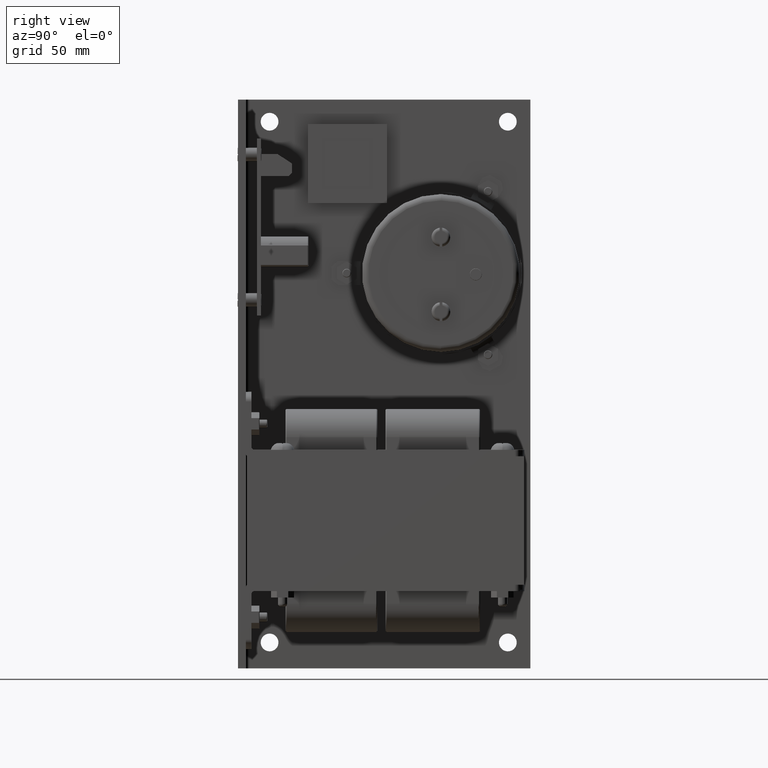
[diagram: clean part render]
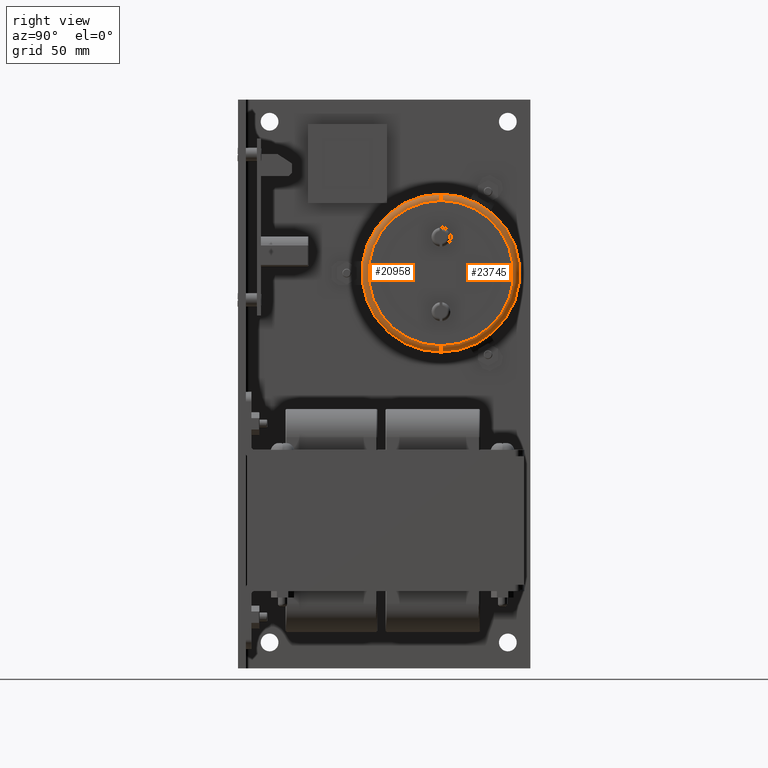
[diagram: same view with one multi-face feature highlighted, each face labeled with its STEP entity id]
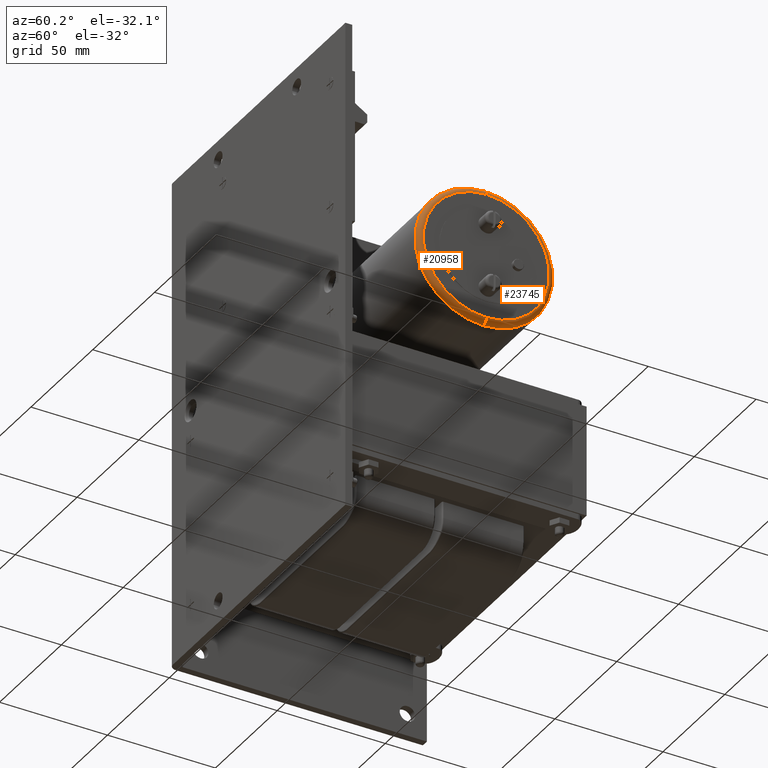
[diagram: same view with one multi-face feature highlighted, each face labeled with its STEP entity id]
A machine part, right view. The highlighted faces form ONE feature: a constant-radius fillet chain: 2 tangent blend faces with common blend radius 2.54 mm. The faces share edges in the B-rep.
A second angle (auxiliary view) of the same feature is appended — it is thin or edge-on in the first view.
Their STEP definitions:
[1] entity #20958 (Torus):
#264 = AXIS2_PLACEMENT_3D ( 'NONE', #6433, #1551, #3801 ) ;
#402 = DIRECTION ( 'NONE',  ( 0.0000000000000000000, 1.000000000000000000, -1.224646799147353200E-016 ) ) ;
#479 = VERTEX_POINT ( 'NONE', #15959 ) ;
#1216 = AXIS2_PLACEMENT_3D ( 'NONE', #21659, #25913, #28318 ) ;
#1551 = DIRECTION ( 'NONE',  ( 1.000000000000000000, 0.0000000000000000000, 0.0000000000000000000 ) ) ;
#2584 = CIRCLE ( 'NONE', #4785, 0.1000000000000000200 ) ;
#3801 = DIRECTION ( 'NONE',  ( 0.0000000000000000000, 0.0000000000000000000, -1.000000000000000000 ) ) ;
#4673 = CARTESIAN_POINT ( 'NONE',  ( 4.402320529999975900, 3.205000002417780300, 1.754671999999999600 ) ) ;
#4785 = AXIS2_PLACEMENT_3D ( 'NONE', #14617, #402, #7422 ) ;
#5256 = TOROIDAL_SURFACE ( 'NONE', #264, 1.150000000000000100, 0.1000000000000000100 ) ;
#5584 = EDGE_CURVE ( 'NONE', #26335, #21542, #6052, .T. ) ;
#6052 = CIRCLE ( 'NONE', #11945, 0.1000000000000000200 ) ;
#6321 = EDGE_CURVE ( 'NONE', #479, #21542, #27749, .T. ) ;
#6433 = CARTESIAN_POINT ( 'NONE',  ( 4.402320529999975900, 3.205000002417780300, 1.754671999999999600 ) ) ;
#6812 = DIRECTION ( 'NONE',  ( -1.000000000000000000, -0.0000000000000000000, -0.0000000000000000000 ) ) ;
#7422 = DIRECTION ( 'NONE',  ( 0.0000000000000000000, 0.0000000000000000000, 1.000000000000000000 ) ) ;
#9285 = ORIENTED_EDGE ( 'NONE', *, *, #6321, .F. ) ;
#9973 = AXIS2_PLACEMENT_3D ( 'NONE', #4673, #6812, #23187 ) ;
#10167 = VERTEX_POINT ( 'NONE', #23758 ) ;
#11377 = CARTESIAN_POINT ( 'NONE',  ( 4.402320529999975900, 3.205000002417780300, 0.5046719999999995700 ) ) ;
#11945 = AXIS2_PLACEMENT_3D ( 'NONE', #14934, #12805, #21968 ) ;
#12643 = ORIENTED_EDGE ( 'NONE', *, *, #16418, .F. ) ;
#12805 = DIRECTION ( 'NONE',  ( 0.0000000000000000000, -1.000000000000000000, 0.0000000000000000000 ) ) ;
#14617 = CARTESIAN_POINT ( 'NONE',  ( 4.402320529999975900, 3.205000002417780300, 2.904671999999999700 ) ) ;
#14746 = EDGE_LOOP ( 'NONE', ( #12643, #24720, #15397, #9285 ) ) ;
#14934 = CARTESIAN_POINT ( 'NONE',  ( 4.402320529999975900, 3.205000002417780300, 0.6046719999999995400 ) ) ;
#15065 = EDGE_CURVE ( 'NONE', #26335, #10167, #28815, .T. ) ;
#15397 = ORIENTED_EDGE ( 'NONE', *, *, #5584, .T. ) ;
#15959 = CARTESIAN_POINT ( 'NONE',  ( 4.502320529999975600, 3.205000002417780300, 2.904671999999999700 ) ) ;
#16418 = EDGE_CURVE ( 'NONE', #10167, #479, #2584, .T. ) ;
#20958 = ADVANCED_FACE ( 'NONE', ( #27265 ), #5256, .T. ) ;
#21542 = VERTEX_POINT ( 'NONE', #25477 ) ;
#21659 = CARTESIAN_POINT ( 'NONE',  ( 4.502320529999975600, 3.205000002417780300, 1.754671999999999600 ) ) ;
#21968 = DIRECTION ( 'NONE',  ( 0.0000000000000000000, 0.0000000000000000000, -1.000000000000000000 ) ) ;
#23187 = DIRECTION ( 'NONE',  ( 0.0000000000000000000, 0.0000000000000000000, -1.000000000000000000 ) ) ;
#23758 = CARTESIAN_POINT ( 'NONE',  ( 4.402320529999975900, 3.205000002417780300, 3.004671999999999800 ) ) ;
#24720 = ORIENTED_EDGE ( 'NONE', *, *, #15065, .F. ) ;
#25477 = CARTESIAN_POINT ( 'NONE',  ( 4.502320529999975600, 3.205000002417780300, 0.6046719999999995400 ) ) ;
#25913 = DIRECTION ( 'NONE',  ( 1.000000000000000000, 0.0000000000000000000, 0.0000000000000000000 ) ) ;
#26335 = VERTEX_POINT ( 'NONE', #11377 ) ;
#27265 = FACE_OUTER_BOUND ( 'NONE', #14746, .T. ) ;
#27749 = CIRCLE ( 'NONE', #1216, 1.150000000000000100 ) ;
#28318 = DIRECTION ( 'NONE',  ( 0.0000000000000000000, 0.0000000000000000000, -1.000000000000000000 ) ) ;
#28815 = CIRCLE ( 'NONE', #9973, 1.250000000000000000 ) ;
[2] entity #23745 (Torus):
#402 = DIRECTION ( 'NONE',  ( 0.0000000000000000000, 1.000000000000000000, -1.224646799147353200E-016 ) ) ;
#479 = VERTEX_POINT ( 'NONE', #15959 ) ;
#1101 = ORIENTED_EDGE ( 'NONE', *, *, #28081, .F. ) ;
#2584 = CIRCLE ( 'NONE', #4785, 0.1000000000000000200 ) ;
#3633 = DIRECTION ( 'NONE',  ( 1.000000000000000000, 0.0000000000000000000, 0.0000000000000000000 ) ) ;
#4450 = DIRECTION ( 'NONE',  ( -1.000000000000000000, -0.0000000000000000000, -0.0000000000000000000 ) ) ;
#4785 = AXIS2_PLACEMENT_3D ( 'NONE', #14617, #402, #7422 ) ;
#5406 = CIRCLE ( 'NONE', #23001, 1.150000000000000100 ) ;
#5584 = EDGE_CURVE ( 'NONE', #26335, #21542, #6052, .T. ) ;
#5820 = ORIENTED_EDGE ( 'NONE', *, *, #8626, .F. ) ;
#5883 = DIRECTION ( 'NONE',  ( 0.0000000000000000000, 0.0000000000000000000, -1.000000000000000000 ) ) ;
#6052 = CIRCLE ( 'NONE', #11945, 0.1000000000000000200 ) ;
#7422 = DIRECTION ( 'NONE',  ( 0.0000000000000000000, 0.0000000000000000000, 1.000000000000000000 ) ) ;
#8626 = EDGE_CURVE ( 'NONE', #10167, #26335, #18419, .T. ) ;
#9138 = DIRECTION ( 'NONE',  ( 0.0000000000000000000, 0.0000000000000000000, -1.000000000000000000 ) ) ;
#9974 = CARTESIAN_POINT ( 'NONE',  ( 4.402320529999975900, 3.205000002417780300, 1.754671999999999600 ) ) ;
#10167 = VERTEX_POINT ( 'NONE', #23758 ) ;
#11261 = TOROIDAL_SURFACE ( 'NONE', #29139, 1.150000000000000100, 0.1000000000000000100 ) ;
#11377 = CARTESIAN_POINT ( 'NONE',  ( 4.402320529999975900, 3.205000002417780300, 0.5046719999999995700 ) ) ;
#11945 = AXIS2_PLACEMENT_3D ( 'NONE', #14934, #12805, #21968 ) ;
#12408 = DIRECTION ( 'NONE',  ( 1.000000000000000000, 0.0000000000000000000, 0.0000000000000000000 ) ) ;
#12805 = DIRECTION ( 'NONE',  ( 0.0000000000000000000, -1.000000000000000000, 0.0000000000000000000 ) ) ;
#14617 = CARTESIAN_POINT ( 'NONE',  ( 4.402320529999975900, 3.205000002417780300, 2.904671999999999700 ) ) ;
#14934 = CARTESIAN_POINT ( 'NONE',  ( 4.402320529999975900, 3.205000002417780300, 0.6046719999999995400 ) ) ;
#15959 = CARTESIAN_POINT ( 'NONE',  ( 4.502320529999975600, 3.205000002417780300, 2.904671999999999700 ) ) ;
#16418 = EDGE_CURVE ( 'NONE', #10167, #479, #2584, .T. ) ;
#18419 = CIRCLE ( 'NONE', #24653, 1.250000000000000000 ) ;
#20108 = CARTESIAN_POINT ( 'NONE',  ( 4.502320529999975600, 3.205000002417780300, 1.754671999999999600 ) ) ;
#20723 = CARTESIAN_POINT ( 'NONE',  ( 4.402320529999975900, 3.205000002417780300, 1.754671999999999600 ) ) ;
#21062 = EDGE_LOOP ( 'NONE', ( #5820, #25931, #1101, #22032 ) ) ;
#21542 = VERTEX_POINT ( 'NONE', #25477 ) ;
#21544 = DIRECTION ( 'NONE',  ( 0.0000000000000000000, 0.0000000000000000000, -1.000000000000000000 ) ) ;
#21968 = DIRECTION ( 'NONE',  ( 0.0000000000000000000, 0.0000000000000000000, -1.000000000000000000 ) ) ;
#22032 = ORIENTED_EDGE ( 'NONE', *, *, #5584, .F. ) ;
#23001 = AXIS2_PLACEMENT_3D ( 'NONE', #20108, #3633, #5883 ) ;
#23745 = ADVANCED_FACE ( 'NONE', ( #24700 ), #11261, .T. ) ;
#23758 = CARTESIAN_POINT ( 'NONE',  ( 4.402320529999975900, 3.205000002417780300, 3.004671999999999800 ) ) ;
#24653 = AXIS2_PLACEMENT_3D ( 'NONE', #20723, #4450, #9138 ) ;
#24700 = FACE_OUTER_BOUND ( 'NONE', #21062, .T. ) ;
#25477 = CARTESIAN_POINT ( 'NONE',  ( 4.502320529999975600, 3.205000002417780300, 0.6046719999999995400 ) ) ;
#25931 = ORIENTED_EDGE ( 'NONE', *, *, #16418, .T. ) ;
#26335 = VERTEX_POINT ( 'NONE', #11377 ) ;
#28081 = EDGE_CURVE ( 'NONE', #21542, #479, #5406, .T. ) ;
#29139 = AXIS2_PLACEMENT_3D ( 'NONE', #9974, #12408, #21544 ) ;